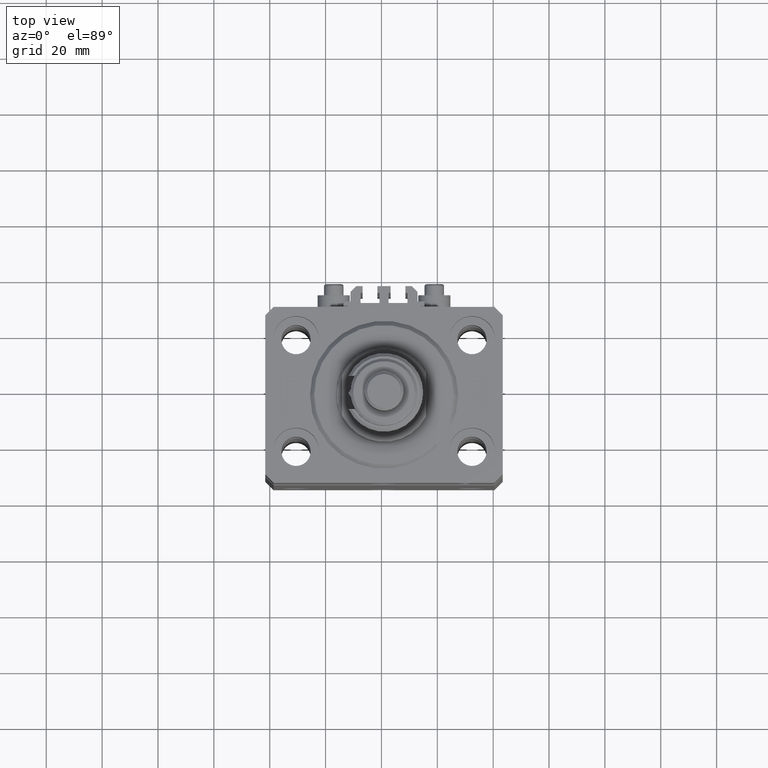
[diagram: clean part render]
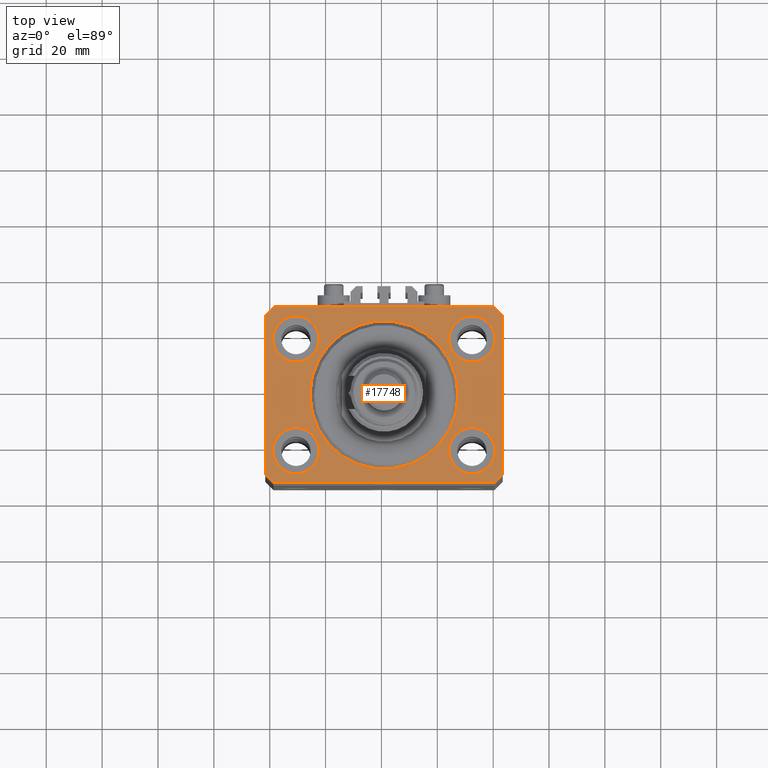
[diagram: same view with one face highlighted and labeled with its STEP entity id]
A machine part, top view. The second image highlights one B-rep face of the part: STEP entity #17748.
In plain terms, the highlighted planar face has unit normal (0, 0, 1).
Its self-contained STEP definition (entity closure, byte-faithful):
#200 = CARTESIAN_POINT ( 'NONE',  ( 26.50000000000000355, 0.000000000000000000, 0.000000000000000000 ) ) ;
#356 = ORIENTED_EDGE ( 'NONE', *, *, #6282, .F. ) ;
#1130 = VERTEX_POINT ( 'NONE', #19931 ) ;
#1494 = CARTESIAN_POINT ( 'NONE',  ( 23.25000000000000355, 20.00000000000001066, 0.000000000000000000 ) ) ;
#1607 = CARTESIAN_POINT ( 'NONE',  ( -39.50000000000000711, -31.50000000000000000, 0.000000000000000000 ) ) ;
#1857 = AXIS2_PLACEMENT_3D ( 'NONE', #26724, #34699, #18495 ) ;
#2167 = CIRCLE ( 'NONE', #41665, 8.250000000000000000 ) ;
#2286 = ORIENTED_EDGE ( 'NONE', *, *, #46906, .F. ) ;
#2335 = DIRECTION ( 'NONE',  ( -0.7071067811865356934, 0.7071067811865594521, 0.000000000000000000 ) ) ;
#2454 = FACE_BOUND ( 'NONE', #25354, .T. ) ;
#2857 = ORIENTED_EDGE ( 'NONE', *, *, #43892, .F. ) ;
#2959 = CARTESIAN_POINT ( 'NONE',  ( -23.25000000000000000, -20.00000000000000000, 0.000000000000000000 ) ) ;
#3071 = AXIS2_PLACEMENT_3D ( 'NONE', #7583, #27165, #23304 ) ;
#3193 = VERTEX_POINT ( 'NONE', #2959 ) ;
#3232 = DIRECTION ( 'NONE',  ( 0.000000000000000000, 0.000000000000000000, 1.000000000000000000 ) ) ;
#3401 = CARTESIAN_POINT ( 'NONE',  ( 31.50000000000000000, -20.00000000000000000, 0.000000000000000000 ) ) ;
#3637 = VERTEX_POINT ( 'NONE', #31244 ) ;
#4653 = DIRECTION ( 'NONE',  ( 1.000000000000000000, 0.000000000000000000, 0.000000000000000000 ) ) ;
#4655 = EDGE_LOOP ( 'NONE', ( #46168, #49030, #34613, #27806, #18773, #10922, #14677, #45455 ) ) ;
#4694 = CARTESIAN_POINT ( 'NONE',  ( -23.25000000000000000, 20.00000000000000000, 0.000000000000000000 ) ) ;
#5229 = VERTEX_POINT ( 'NONE', #6373 ) ;
#5578 = CARTESIAN_POINT ( 'NONE',  ( 42.50000000000051870, 28.49999999999995381, 0.000000000000000000 ) ) ;
#6282 = EDGE_CURVE ( 'NONE', #27025, #13775, #26524, .T. ) ;
#6373 = CARTESIAN_POINT ( 'NONE',  ( -39.75000000000000000, -20.00000000000000000, 0.000000000000000000 ) ) ;
#6430 = VECTOR ( 'NONE', #12625, 1000.000000000000000 ) ;
#7166 = CIRCLE ( 'NONE', #18697, 8.249999999999992895 ) ;
#7275 = CARTESIAN_POINT ( 'NONE',  ( 23.25000000000000355, -20.00000000000000000, 0.000000000000000000 ) ) ;
#7583 = CARTESIAN_POINT ( 'NONE',  ( -31.50000000000000000, 20.00000000000000000, 0.000000000000000000 ) ) ;
#7610 = VERTEX_POINT ( 'NONE', #19894 ) ;
#7741 = CARTESIAN_POINT ( 'NONE',  ( -26.50000000000000355, 3.245314017740486554E-15, 0.000000000000000000 ) ) ;
#8117 = DIRECTION ( 'NONE',  ( 0.000000000000000000, 0.000000000000000000, 1.000000000000000000 ) ) ;
#8999 = LINE ( 'NONE', #24699, #49163 ) ;
#10005 = DIRECTION ( 'NONE',  ( 0.7071067811865483499, 0.7071067811865466846, 0.000000000000000000 ) ) ;
#10074 = LINE ( 'NONE', #17811, #25807 ) ;
#10599 = AXIS2_PLACEMENT_3D ( 'NONE', #3401, #30984, #29981 ) ;
#10701 = EDGE_CURVE ( 'NONE', #37156, #25424, #33948, .T. ) ;
#10712 = FACE_OUTER_BOUND ( 'NONE', #4655, .T. ) ;
#10793 = CIRCLE ( 'NONE', #34607, 8.250000000000000000 ) ;
#10922 = ORIENTED_EDGE ( 'NONE', *, *, #10701, .T. ) ;
#11132 = CARTESIAN_POINT ( 'NONE',  ( 42.50000000000000711, -28.50000000000000355, 0.000000000000000000 ) ) ;
#12510 = ORIENTED_EDGE ( 'NONE', *, *, #40418, .F. ) ;
#12625 = DIRECTION ( 'NONE',  ( -0.7071067811865471286, -0.7071067811865479058, 0.000000000000000000 ) ) ;
#12801 = EDGE_LOOP ( 'NONE', ( #18035, #2286 ) ) ;
#12981 = CARTESIAN_POINT ( 'NONE',  ( 0.000000000000000000, 0.000000000000000000, 0.000000000000000000 ) ) ;
#13489 = DIRECTION ( 'NONE',  ( 0.000000000000000000, 0.000000000000000000, 1.000000000000000000 ) ) ;
#13775 = VERTEX_POINT ( 'NONE', #16256 ) ;
#14677 = ORIENTED_EDGE ( 'NONE', *, *, #50979, .T. ) ;
#14900 = VERTEX_POINT ( 'NONE', #1494 ) ;
#14916 = EDGE_LOOP ( 'NONE', ( #2857, #36145 ) ) ;
#15816 = VERTEX_POINT ( 'NONE', #41481 ) ;
#15929 = EDGE_CURVE ( 'NONE', #3637, #1130, #38364, .T. ) ;
#16256 = CARTESIAN_POINT ( 'NONE',  ( 39.74999999999999289, -20.00000000000000000, 0.000000000000000000 ) ) ;
#16592 = DIRECTION ( 'NONE',  ( 1.000000000000000000, 0.000000000000000000, 0.000000000000000000 ) ) ;
#17014 = CARTESIAN_POINT ( 'NONE',  ( 0.000000000000000000, 0.000000000000000000, 0.000000000000000000 ) ) ;
#17563 = CARTESIAN_POINT ( 'NONE',  ( 31.50000000000000000, 20.00000000000001066, 0.000000000000000000 ) ) ;
#17748 = ADVANCED_FACE ( 'NONE', ( #37749, #29784, #2454, #46255, #50127, #10712 ), #18947, .T. ) ;
#17811 = CARTESIAN_POINT ( 'NONE',  ( -42.50000000000000000, 28.50000000000000000, 0.000000000000000000 ) ) ;
#17829 = CARTESIAN_POINT ( 'NONE',  ( 42.50000000000051870, 28.49999999999995381, 0.000000000000000000 ) ) ;
#18035 = ORIENTED_EDGE ( 'NONE', *, *, #44619, .F. ) ;
#18189 = CARTESIAN_POINT ( 'NONE',  ( 0.000000000000000000, 0.000000000000000000, 0.000000000000000000 ) ) ;
#18495 = DIRECTION ( 'NONE',  ( 1.000000000000000000, 0.000000000000000000, 0.000000000000000000 ) ) ;
#18697 = AXIS2_PLACEMENT_3D ( 'NONE', #17563, #24758, #40743 ) ;
#18773 = ORIENTED_EDGE ( 'NONE', *, *, #26389, .T. ) ;
#18897 = EDGE_CURVE ( 'NONE', #7610, #14900, #7166, .T. ) ;
#18947 = PLANE ( 'NONE',  #26043 ) ;
#19068 = VECTOR ( 'NONE', #2335, 1000.000000000000114 ) ;
#19149 = EDGE_CURVE ( 'NONE', #15816, #50794, #8999, .T. ) ;
#19365 = DIRECTION ( 'NONE',  ( 8.886653596232072440E-15, 1.000000000000000000, 0.000000000000000000 ) ) ;
#19607 = ORIENTED_EDGE ( 'NONE', *, *, #18897, .F. ) ;
#19853 = CIRCLE ( 'NONE', #50264, 26.50000000000000355 ) ;
#19894 = CARTESIAN_POINT ( 'NONE',  ( 39.74999999999999289, 20.00000000000001066, 0.000000000000000000 ) ) ;
#19931 = CARTESIAN_POINT ( 'NONE',  ( -39.50000000000000711, 31.50000000000000000, 0.000000000000000000 ) ) ;
#20265 = VERTEX_POINT ( 'NONE', #200 ) ;
#20611 = DIRECTION ( 'NONE',  ( 0.000000000000000000, 0.000000000000000000, 1.000000000000000000 ) ) ;
#21773 = ORIENTED_EDGE ( 'NONE', *, *, #45618, .F. ) ;
#22312 = DIRECTION ( 'NONE',  ( 1.000000000000000000, 0.000000000000000000, 0.000000000000000000 ) ) ;
#22364 = LINE ( 'NONE', #29856, #34479 ) ;
#22451 = EDGE_LOOP ( 'NONE', ( #26966, #21773 ) ) ;
#22567 = CIRCLE ( 'NONE', #42311, 26.50000000000000355 ) ;
#22636 = EDGE_CURVE ( 'NONE', #35779, #29810, #25293, .T. ) ;
#23304 = DIRECTION ( 'NONE',  ( 1.000000000000000000, 0.000000000000000000, 0.000000000000000000 ) ) ;
#23413 = CIRCLE ( 'NONE', #25027, 8.250000000000000000 ) ;
#24072 = EDGE_CURVE ( 'NONE', #1130, #43048, #35550, .T. ) ;
#24699 = CARTESIAN_POINT ( 'NONE',  ( -42.50000000000000000, -28.50000000000000000, 0.000000000000000000 ) ) ;
#24758 = DIRECTION ( 'NONE',  ( 0.000000000000000000, 0.000000000000000000, 1.000000000000000000 ) ) ;
#24920 = EDGE_CURVE ( 'NONE', #13775, #27025, #39380, .T. ) ;
#24978 = ORIENTED_EDGE ( 'NONE', *, *, #24920, .F. ) ;
#25027 = AXIS2_PLACEMENT_3D ( 'NONE', #34412, #3232, #22312 ) ;
#25293 = CIRCLE ( 'NONE', #3071, 8.250000000000000000 ) ;
#25354 = EDGE_LOOP ( 'NONE', ( #19607, #12510 ) ) ;
#25424 = VERTEX_POINT ( 'NONE', #32457 ) ;
#25772 = DIRECTION ( 'NONE',  ( 0.000000000000000000, -1.000000000000000000, 0.000000000000000000 ) ) ;
#25807 = VECTOR ( 'NONE', #25772, 1000.000000000000000 ) ;
#26043 = AXIS2_PLACEMENT_3D ( 'NONE', #18189, #49626, #41868 ) ;
#26389 = EDGE_CURVE ( 'NONE', #50794, #37156, #22364, .T. ) ;
#26524 = CIRCLE ( 'NONE', #1857, 8.249999999999992895 ) ;
#26724 = CARTESIAN_POINT ( 'NONE',  ( 31.50000000000000000, -20.00000000000000000, 0.000000000000000000 ) ) ;
#26966 = ORIENTED_EDGE ( 'NONE', *, *, #22636, .F. ) ;
#27025 = VERTEX_POINT ( 'NONE', #7275 ) ;
#27165 = DIRECTION ( 'NONE',  ( 0.000000000000000000, 0.000000000000000000, 1.000000000000000000 ) ) ;
#27806 = ORIENTED_EDGE ( 'NONE', *, *, #19149, .T. ) ;
#28450 = VECTOR ( 'NONE', #42235, 1000.000000000000000 ) ;
#28692 = DIRECTION ( 'NONE',  ( 0.000000000000000000, 0.000000000000000000, 1.000000000000000000 ) ) ;
#29580 = CARTESIAN_POINT ( 'NONE',  ( 39.50000000000000711, -31.50000000000000000, 0.000000000000000000 ) ) ;
#29784 = FACE_BOUND ( 'NONE', #31530, .T. ) ;
#29810 = VERTEX_POINT ( 'NONE', #47999 ) ;
#29845 = VECTOR ( 'NONE', #19365, 1000.000000000000000 ) ;
#29856 = CARTESIAN_POINT ( 'NONE',  ( -39.50000000000000711, -31.50000000000000000, 0.000000000000000000 ) ) ;
#29981 = DIRECTION ( 'NONE',  ( 1.000000000000000000, 0.000000000000000000, 0.000000000000000000 ) ) ;
#30984 = DIRECTION ( 'NONE',  ( 0.000000000000000000, 0.000000000000000000, 1.000000000000000000 ) ) ;
#31213 = CARTESIAN_POINT ( 'NONE',  ( -31.50000000000000000, 20.00000000000000000, 0.000000000000000000 ) ) ;
#31244 = CARTESIAN_POINT ( 'NONE',  ( 39.50000000000056843, 31.50000000000000000, 0.000000000000000000 ) ) ;
#31530 = EDGE_LOOP ( 'NONE', ( #24978, #356 ) ) ;
#31727 = VERTEX_POINT ( 'NONE', #5578 ) ;
#32457 = CARTESIAN_POINT ( 'NONE',  ( 42.50000000000000711, -28.50000000000000355, 0.000000000000000000 ) ) ;
#33753 = CARTESIAN_POINT ( 'NONE',  ( 39.50000000000056843, 31.50000000000000000, 0.000000000000000000 ) ) ;
#33948 = LINE ( 'NONE', #29580, #49675 ) ;
#34076 = CARTESIAN_POINT ( 'NONE',  ( -31.50000000000000000, -20.00000000000000000, 0.000000000000000000 ) ) ;
#34412 = CARTESIAN_POINT ( 'NONE',  ( -31.50000000000000000, -20.00000000000000000, 0.000000000000000000 ) ) ;
#34462 = DIRECTION ( 'NONE',  ( 1.000000000000000000, 0.000000000000000000, 0.000000000000000000 ) ) ;
#34479 = VECTOR ( 'NONE', #34462, 1000.000000000000000 ) ;
#34607 = AXIS2_PLACEMENT_3D ( 'NONE', #34076, #13489, #45417 ) ;
#34613 = ORIENTED_EDGE ( 'NONE', *, *, #39599, .T. ) ;
#34699 = DIRECTION ( 'NONE',  ( 0.000000000000000000, 0.000000000000000000, 1.000000000000000000 ) ) ;
#35550 = LINE ( 'NONE', #40165, #6430 ) ;
#35779 = VERTEX_POINT ( 'NONE', #4694 ) ;
#35946 = VERTEX_POINT ( 'NONE', #7741 ) ;
#36145 = ORIENTED_EDGE ( 'NONE', *, *, #46924, .F. ) ;
#37156 = VERTEX_POINT ( 'NONE', #44755 ) ;
#37749 = FACE_BOUND ( 'NONE', #14916, .T. ) ;
#38364 = LINE ( 'NONE', #33753, #28450 ) ;
#39380 = CIRCLE ( 'NONE', #10599, 8.249999999999992895 ) ;
#39599 = EDGE_CURVE ( 'NONE', #43048, #15816, #10074, .T. ) ;
#39784 = CARTESIAN_POINT ( 'NONE',  ( 31.50000000000000000, 20.00000000000001066, 0.000000000000000000 ) ) ;
#40165 = CARTESIAN_POINT ( 'NONE',  ( -39.50000000000000711, 31.50000000000000000, 0.000000000000000000 ) ) ;
#40412 = DIRECTION ( 'NONE',  ( 0.7071067811865471286, -0.7071067811865479058, 0.000000000000000000 ) ) ;
#40418 = EDGE_CURVE ( 'NONE', #14900, #7610, #44786, .T. ) ;
#40524 = DIRECTION ( 'NONE',  ( 1.000000000000000000, 0.000000000000000000, 0.000000000000000000 ) ) ;
#40743 = DIRECTION ( 'NONE',  ( 1.000000000000000000, 0.000000000000000000, 0.000000000000000000 ) ) ;
#41481 = CARTESIAN_POINT ( 'NONE',  ( -42.50000000000000000, -28.50000000000000000, 0.000000000000000000 ) ) ;
#41665 = AXIS2_PLACEMENT_3D ( 'NONE', #31213, #46930, #43563 ) ;
#41753 = LINE ( 'NONE', #17829, #19068 ) ;
#41868 = DIRECTION ( 'NONE',  ( 1.000000000000000000, 0.000000000000000000, -0.000000000000000000 ) ) ;
#42235 = DIRECTION ( 'NONE',  ( -1.000000000000000000, 0.000000000000000000, 0.000000000000000000 ) ) ;
#42311 = AXIS2_PLACEMENT_3D ( 'NONE', #17014, #20611, #4653 ) ;
#43048 = VERTEX_POINT ( 'NONE', #48527 ) ;
#43563 = DIRECTION ( 'NONE',  ( 1.000000000000000000, 0.000000000000000000, 0.000000000000000000 ) ) ;
#43892 = EDGE_CURVE ( 'NONE', #3193, #5229, #23413, .T. ) ;
#44619 = EDGE_CURVE ( 'NONE', #20265, #35946, #22567, .T. ) ;
#44755 = CARTESIAN_POINT ( 'NONE',  ( 39.50000000000000711, -31.50000000000000000, 0.000000000000000000 ) ) ;
#44786 = CIRCLE ( 'NONE', #46414, 8.249999999999992895 ) ;
#45417 = DIRECTION ( 'NONE',  ( 1.000000000000000000, 0.000000000000000000, 0.000000000000000000 ) ) ;
#45455 = ORIENTED_EDGE ( 'NONE', *, *, #49128, .T. ) ;
#45618 = EDGE_CURVE ( 'NONE', #29810, #35779, #2167, .T. ) ;
#45904 = LINE ( 'NONE', #11132, #29845 ) ;
#46168 = ORIENTED_EDGE ( 'NONE', *, *, #15929, .T. ) ;
#46255 = FACE_BOUND ( 'NONE', #22451, .T. ) ;
#46414 = AXIS2_PLACEMENT_3D ( 'NONE', #39784, #8117, #16592 ) ;
#46906 = EDGE_CURVE ( 'NONE', #35946, #20265, #19853, .T. ) ;
#46924 = EDGE_CURVE ( 'NONE', #5229, #3193, #10793, .T. ) ;
#46930 = DIRECTION ( 'NONE',  ( 0.000000000000000000, 0.000000000000000000, 1.000000000000000000 ) ) ;
#47999 = CARTESIAN_POINT ( 'NONE',  ( -39.75000000000000000, 20.00000000000000000, 0.000000000000000000 ) ) ;
#48527 = CARTESIAN_POINT ( 'NONE',  ( -42.50000000000000000, 28.50000000000000000, 0.000000000000000000 ) ) ;
#49030 = ORIENTED_EDGE ( 'NONE', *, *, #24072, .T. ) ;
#49128 = EDGE_CURVE ( 'NONE', #31727, #3637, #41753, .T. ) ;
#49163 = VECTOR ( 'NONE', #40412, 1000.000000000000000 ) ;
#49626 = DIRECTION ( 'NONE',  ( 0.000000000000000000, 0.000000000000000000, 1.000000000000000000 ) ) ;
#49675 = VECTOR ( 'NONE', #10005, 1000.000000000000000 ) ;
#50127 = FACE_BOUND ( 'NONE', #12801, .T. ) ;
#50264 = AXIS2_PLACEMENT_3D ( 'NONE', #12981, #28692, #40524 ) ;
#50794 = VERTEX_POINT ( 'NONE', #1607 ) ;
#50979 = EDGE_CURVE ( 'NONE', #25424, #31727, #45904, .T. ) ;